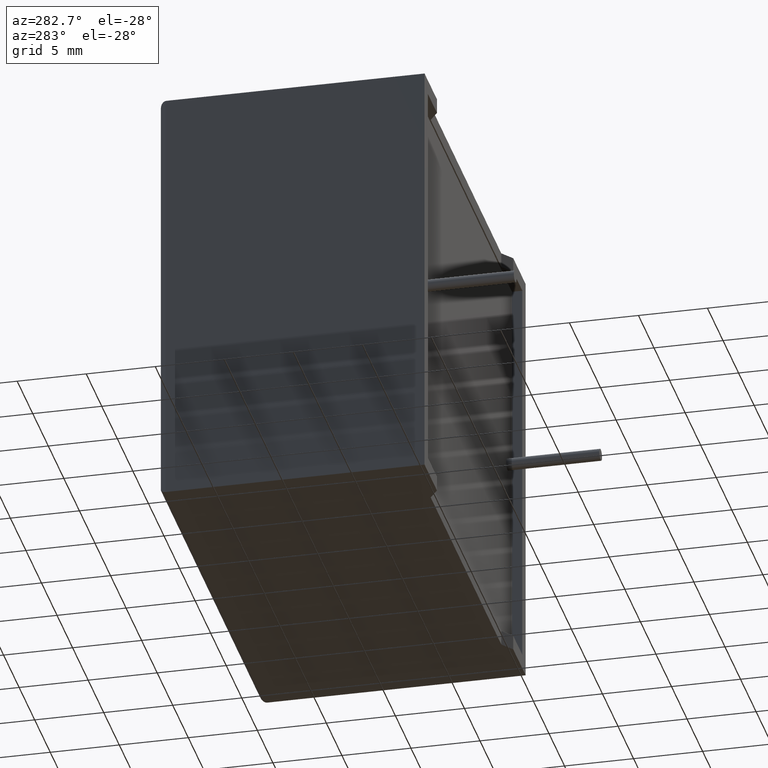
[diagram: clean part render]
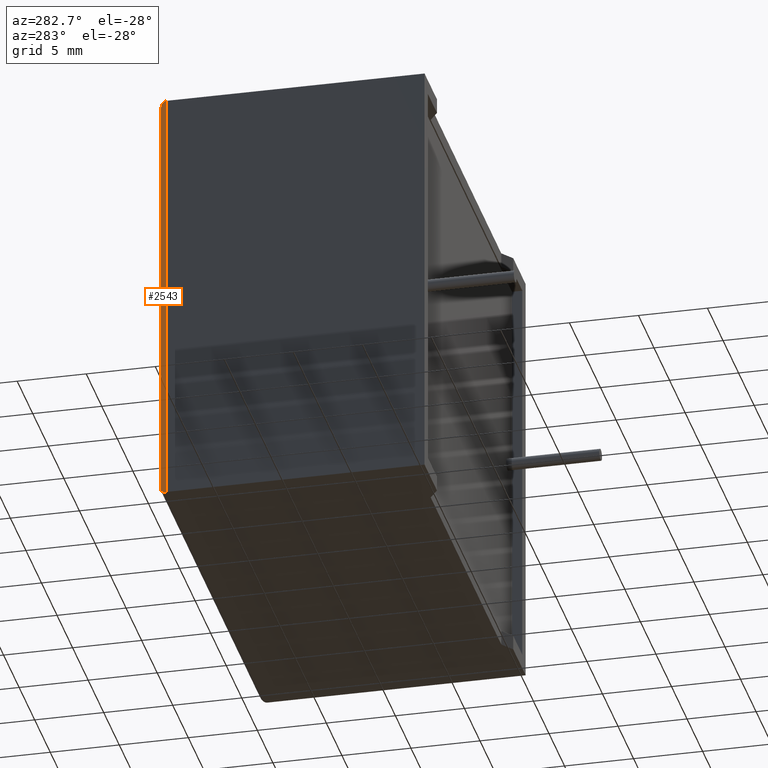
[diagram: same view with one face highlighted and labeled with its STEP entity id]
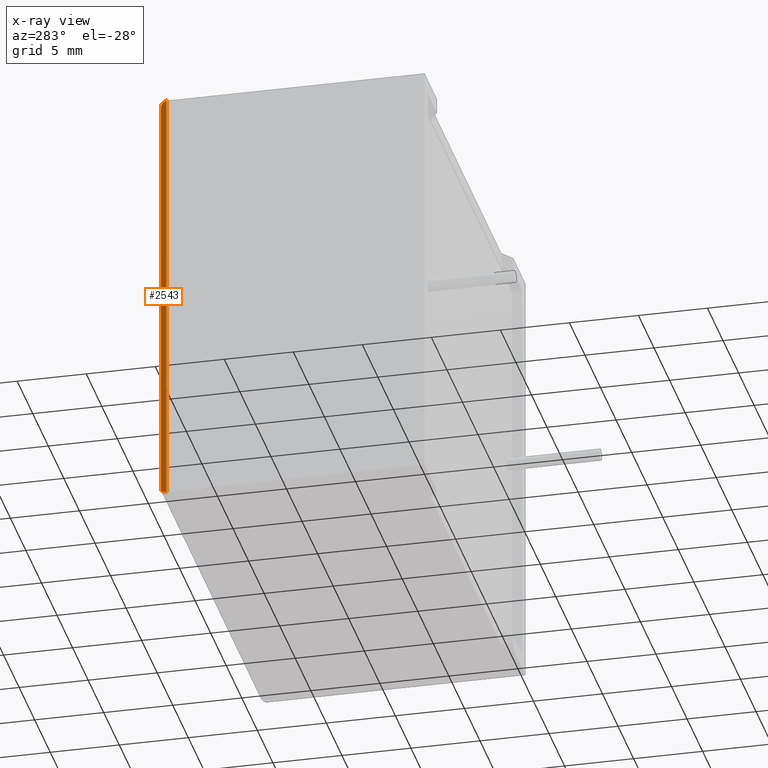
[diagram: x-ray of the same camera — body ghosted, the highlighted face saturated]
A machine part, auxiliary view. The second image highlights one B-rep face of the part: STEP entity #2543.
The next image is the same camera in x-ray: the body ghosted, the highlighted face saturated — about 0% of this face is hidden behind the body in this view.
In plain terms, the highlighted cylindrical surface (edge-blend (fillet) strip) has radius 0.5 mm, axis along (0, 0, -1).
Its self-contained STEP definition (entity closure, byte-faithful):
#20 = CARTESIAN_POINT ( 'NONE',  ( 0.2071067811865475200, 19.19999999999999900, 0.2071067811865479100 ) ) ;
#21 = ORIENTED_EDGE ( 'NONE', *, *, #957, .T. ) ;
#28 = CARTESIAN_POINT ( 'NONE',  ( 1.442892915397364600E-016, 18.99289321881345000, 5.779701605339383100E-016 ) ) ;
#62 = EDGE_LOOP ( 'NONE', ( #21, #2697, #1844, #1147 ) ) ;
#148 = CARTESIAN_POINT ( 'NONE',  ( 1.084202172485504400E-016, 18.99289321881345000, 31.30000000000000100 ) ) ;
#166 = CARTESIAN_POINT ( 'NONE',  ( 0.5000000000000000000, 19.19999999999999900, 30.80000000000000100 ) ) ;
#180 = DIRECTION ( 'NONE',  ( -0.0000000000000000000, -0.0000000000000000000, 1.000000000000000000 ) ) ;
#288 = VECTOR ( 'NONE', #180, 1000.000000000000000 ) ;
#332 = CYLINDRICAL_SURFACE ( 'NONE', #2132, 0.5000000000000000000 ) ;
#364 = DIRECTION ( 'NONE',  ( 0.0000000000000000000, 0.0000000000000000000, -1.000000000000000000 ) ) ;
#574 = EDGE_CURVE ( 'NONE', #1270, #1447, #1656, .T. ) ;
#576 = DIRECTION ( 'NONE',  ( -1.000000000000000000, 0.0000000000000000000, 0.0000000000000000000 ) ) ;
#609 = CARTESIAN_POINT ( 'NONE',  ( 0.5000000000000000000, 19.19999999999999900, 31.30000000000000100 ) ) ;
#626 = CARTESIAN_POINT ( 'NONE',  ( 0.5000000000000000000, 19.19999999999999900, 30.80000000000000100 ) ) ;
#696 = VERTEX_POINT ( 'NONE', #166 ) ;
#770 = CARTESIAN_POINT ( 'NONE',  ( 0.0000000000000000000, 18.69999999999999900, 0.0000000000000000000 ) ) ;
#957 = EDGE_CURVE ( 'NONE', #1270, #696, #2905, .T. ) ;
#986 = CARTESIAN_POINT ( 'NONE',  ( 0.5000000000000000000, 19.19999999999999900, 0.5000000000000004400 ) ) ;
#1048 = CARTESIAN_POINT ( 'NONE',  ( 0.5000000000000000000, 18.69999999999999900, 31.30000000000000100 ) ) ;
#1147 = ORIENTED_EDGE ( 'NONE', *, *, #574, .F. ) ;
#1270 = VERTEX_POINT ( 'NONE', #2643 ) ;
#1326 = CARTESIAN_POINT ( 'NONE',  ( 0.0000000000000000000, 18.69999999999999900, 0.0000000000000000000 ) ) ;
#1447 = VERTEX_POINT ( 'NONE', #1326 ) ;
#1459 = CARTESIAN_POINT ( 'NONE',  ( 0.5000000000000000000, 19.19999999999999900, 0.5000000000000004400 ) ) ;
#1521 = CARTESIAN_POINT ( 'NONE',  ( 0.0000000000000000000, 18.69999999999999900, 31.30000000000000100 ) ) ;
#1656 = LINE ( 'NONE', #1521, #2494 ) ;
#1709 = LINE ( 'NONE', #609, #288 ) ;
#1819 = CARTESIAN_POINT ( 'NONE',  ( 0.2071067811865475700, 19.19999999999999900, 31.09289321881344700 ) ) ;
#1844 = ORIENTED_EDGE ( 'NONE', *, *, #2850, .T. ) ;
#1959 = VERTEX_POINT ( 'NONE', #1459 ) ;
#2003 = DIRECTION ( 'NONE',  ( 0.0000000000000000000, 0.0000000000000000000, -1.000000000000000000 ) ) ;
#2037 = FACE_OUTER_BOUND ( 'NONE', #62, .T. ) ;
#2132 = AXIS2_PLACEMENT_3D ( 'NONE', #1048, #2003, #576 ) ;
#2494 = VECTOR ( 'NONE', #364, 1000.000000000000000 ) ;
#2543 = ADVANCED_FACE ( 'NONE', ( #2037 ), #332, .T. ) ;
#2643 = CARTESIAN_POINT ( 'NONE',  ( 0.0000000000000000000, 18.69999999999999900, 31.30000000000000100 ) ) ;
#2697 = ORIENTED_EDGE ( 'NONE', *, *, #2714, .F. ) ;
#2714 = EDGE_CURVE ( 'NONE', #1959, #696, #1709, .T. ) ;
#2850 = EDGE_CURVE ( 'NONE', #1959, #1447, #2961, .T. ) ;
#2905 =( BOUNDED_CURVE ( )  B_SPLINE_CURVE ( 3, ( #2951, #148, #1819, #626 ),
 .UNSPECIFIED., .F., .F. ) 
 B_SPLINE_CURVE_WITH_KNOTS ( ( 4, 4 ),
 ( 0.0000000000000000000, 1.570796326794896600 ),
 .UNSPECIFIED. ) 
 CURVE ( )  GEOMETRIC_REPRESENTATION_ITEM ( )  RATIONAL_B_SPLINE_CURVE ( ( 1.000000000000000000, 0.8047378541243649400, 0.8047378541243649400, 1.000000000000000000 ) ) 
 REPRESENTATION_ITEM ( '' )  );
#2951 = CARTESIAN_POINT ( 'NONE',  ( 0.0000000000000000000, 18.69999999999999900, 31.30000000000000100 ) ) ;
#2961 =( BOUNDED_CURVE ( )  B_SPLINE_CURVE ( 3, ( #986, #20, #28, #770 ),
 .UNSPECIFIED., .F., .F. ) 
 B_SPLINE_CURVE_WITH_KNOTS ( ( 4, 4 ),
 ( 1.570796326794896800, 3.141592653589793100 ),
 .UNSPECIFIED. ) 
 CURVE ( )  GEOMETRIC_REPRESENTATION_ITEM ( )  RATIONAL_B_SPLINE_CURVE ( ( 1.000000000000000000, 0.8047378541243650500, 0.8047378541243650500, 1.000000000000000000 ) ) 
 REPRESENTATION_ITEM ( '' )  );